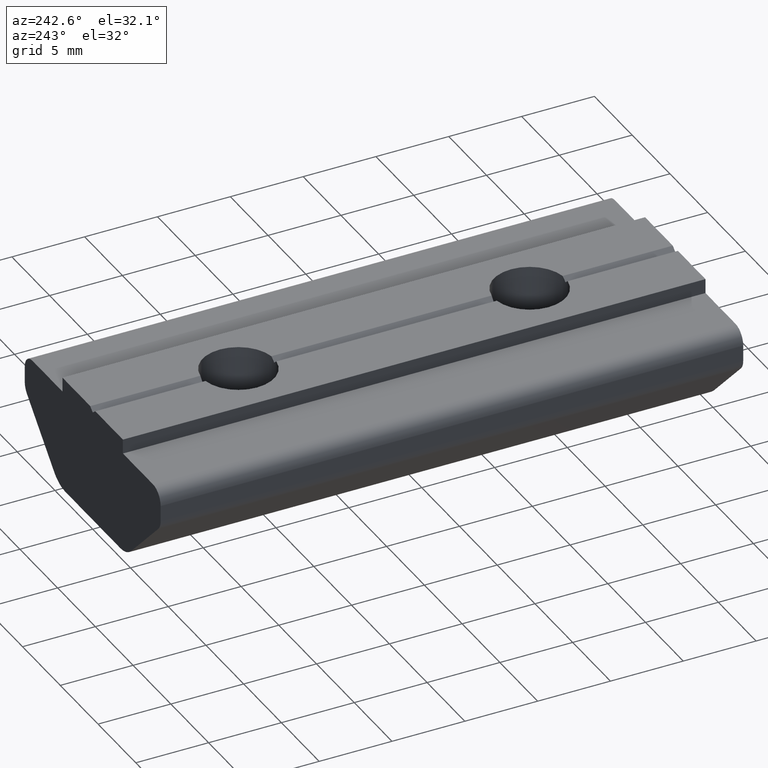
[diagram: clean part render]
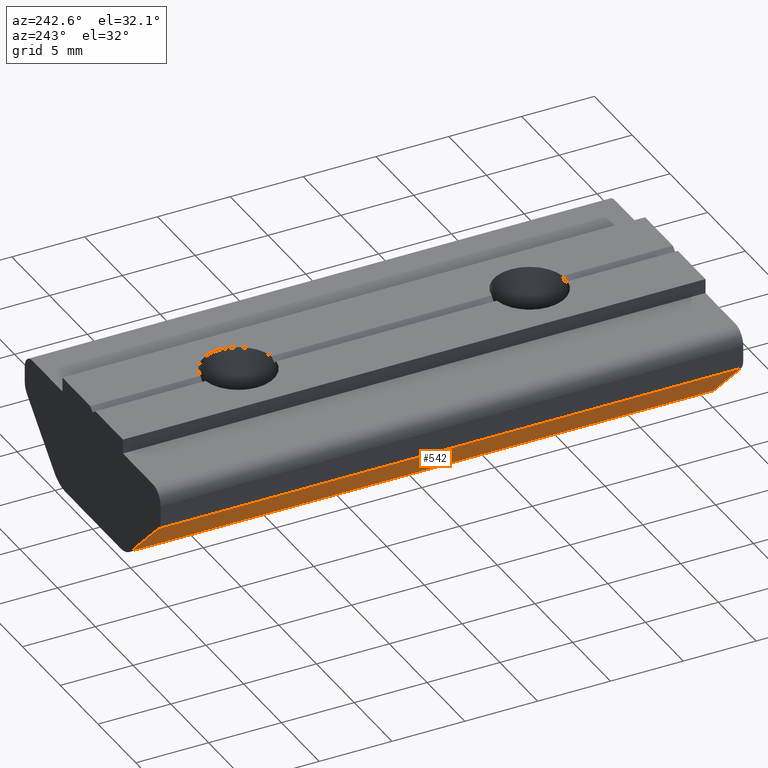
[diagram: same view with one face highlighted and labeled with its STEP entity id]
A machine part, auxiliary view. The second image highlights one B-rep face of the part: STEP entity #542.
In plain terms, the highlighted planar face has unit normal (-0.7071, -0, -0.7071).
Its self-contained STEP definition (entity closure, byte-faithful):
#24=PLANE('',#612);
#47=FACE_OUTER_BOUND('',#74,.T.);
#74=EDGE_LOOP('',(#423,#424,#425,#426));
#114=LINE('',#886,#167);
#115=LINE('',#890,#168);
#116=LINE('',#892,#169);
#117=LINE('',#893,#170);
#167=VECTOR('',#720,40.);
#168=VECTOR('',#725,5.1213192086635);
#169=VECTOR('',#726,40.);
#170=VECTOR('',#727,5.1213192086635);
#256=VERTEX_POINT('',#883);
#257=VERTEX_POINT('',#885);
#258=VERTEX_POINT('',#889);
#259=VERTEX_POINT('',#891);
#321=EDGE_CURVE('',#256,#257,#114,.T.);
#323=EDGE_CURVE('',#256,#258,#115,.T.);
#324=EDGE_CURVE('',#258,#259,#116,.T.);
#325=EDGE_CURVE('',#257,#259,#117,.T.);
#423=ORIENTED_EDGE('',*,*,#323,.T.);
#424=ORIENTED_EDGE('',*,*,#324,.T.);
#425=ORIENTED_EDGE('',*,*,#325,.F.);
#426=ORIENTED_EDGE('',*,*,#321,.F.);
#542=ADVANCED_FACE('',(#47),#24,.T.);
#612=AXIS2_PLACEMENT_3D('',#888,#723,#724);
#720=DIRECTION('',(0.,-1.,0.));
#723=DIRECTION('center_axis',(-0.707106782162851,-4.32978E-17,-0.707106780210244));
#724=DIRECTION('ref_axis',(-0.707106780210244,0.,0.707106782162851));
#725=DIRECTION('',(0.707106780210244,0.,-0.707106782162851));
#726=DIRECTION('',(0.,-1.,0.));
#727=DIRECTION('',(0.707106780210244,0.,-0.707106782162851));
#883=CARTESIAN_POINT('',(-8.70710483900666,30.,4.20710585602228));
#885=CARTESIAN_POINT('',(-8.70710483900666,-10.,4.20710585602228));
#886=CARTESIAN_POINT('',(-8.70710483900666,30.,4.20710585602228));
#888=CARTESIAN_POINT('Origin',(-8.70710483900666,30.,4.20710585602228));
#889=CARTESIAN_POINT('',(-5.08578530293974,30.,0.585786309955436));
#890=CARTESIAN_POINT('',(-8.70710483900666,30.,4.20710585602228));
#891=CARTESIAN_POINT('',(-5.08578530293974,-10.,0.585786309955439));
#892=CARTESIAN_POINT('',(-5.08578530293974,30.,0.585786309955436));
#893=CARTESIAN_POINT('',(-8.70710483900666,-10.,4.20710585602228));